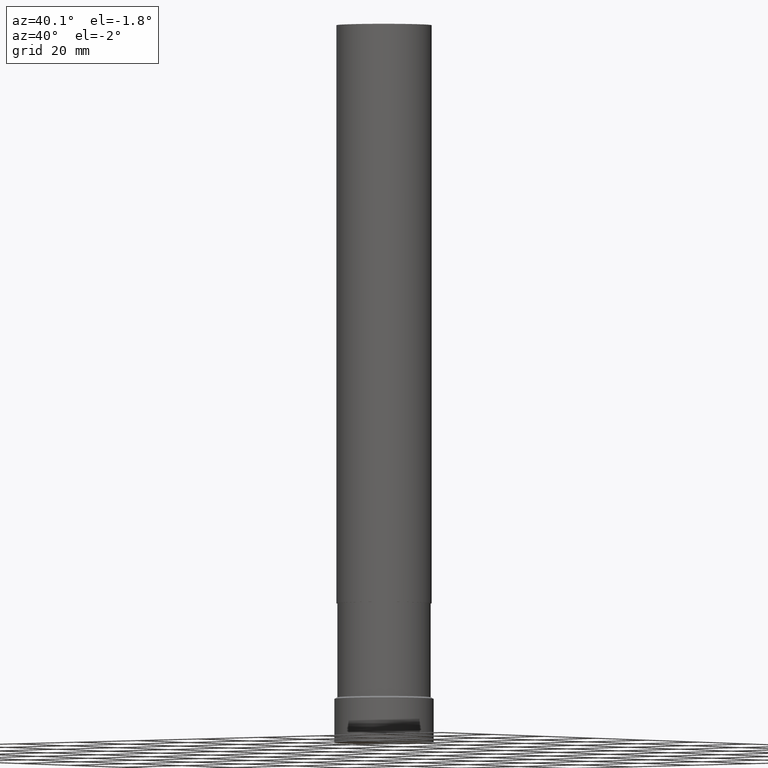
[diagram: clean part render]
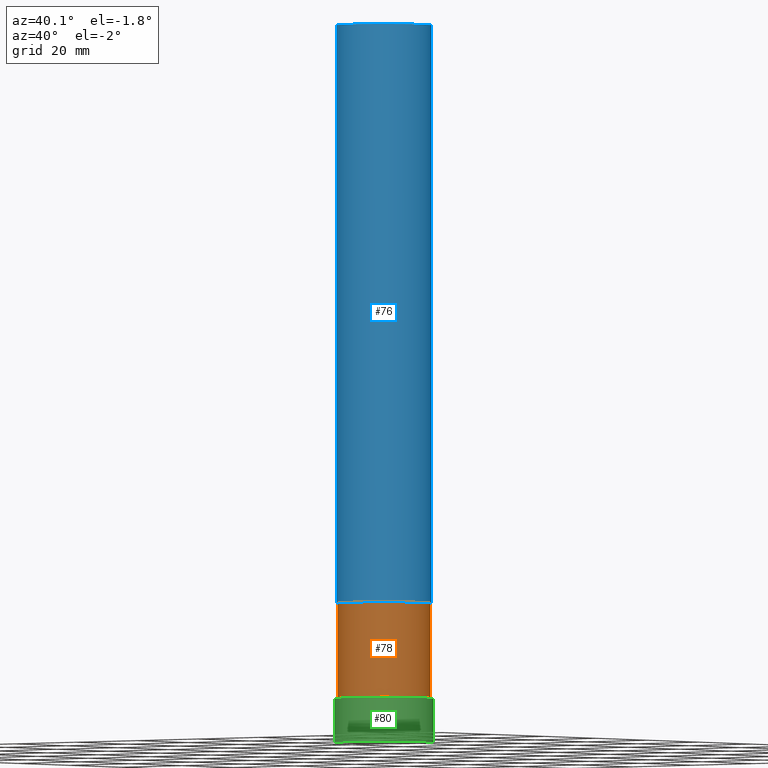
[diagram: same view with three faces highlighted in distinct colors, each labeled with its STEP entity id]
A machine part, auxiliary view with three faces highlighted in distinct colors.
Their STEP definitions:

[orange] entity #78 — the highlighted cylindrical surface (bore or boss wall) has radius 11.75 mm, axis along (-0, 0, 1).
#78=ADVANCED_FACE('',(#91,#92),#93,.T.);
#91=FACE_BOUND('',#110,.T.);
#92=FACE_BOUND('',#111,.T.);
#93=CYLINDRICAL_SURFACE('',#112,11.75);
#110=EDGE_LOOP('',(#135));
#111=EDGE_LOOP('',(#136));
#112=AXIS2_PLACEMENT_3D('',#137,#138,#139);
#135=ORIENTED_EDGE('',*,*,#157,.F.);
#136=ORIENTED_EDGE('',*,*,#156,.T.);
#137=CARTESIAN_POINT('',(-1.4202882675018E-015,2.43180438803728E-014,23.195067647107));
#138=DIRECTION('',(-6.12323399573677E-017,1.04841444096439E-015,1.0));
#139=DIRECTION('',(5.93697167345758E-032,1.0,-1.04841444096439E-015));
#156=EDGE_CURVE('',#164,#164,#165,.T.);
#157=EDGE_CURVE('',#166,#166,#167,.T.);
#164=VERTEX_POINT('',#176);
#165=CIRCLE('',#177,11.75);
#166=VERTEX_POINT('',#178);
#167=CIRCLE('',#179,11.7500000000001);
#176=CARTESIAN_POINT('',(-2.14313189850844E-015,11.75,35.0000000000093));
#177=AXIS2_PLACEMENT_3D('',#190,#191,#192);
#178=CARTESIAN_POINT('',(-6.97444636495159E-016,11.7500000000001,11.3901352942048));
#179=AXIS2_PLACEMENT_3D('',#193,#194,#195);
#190=CARTESIAN_POINT('',(-2.14313189850844E-015,3.66945054337633E-014,35.0000000000093));
#191=DIRECTION('',(6.12323399573677E-017,-1.04841444096439E-015,-1.0));
#192=DIRECTION('',(5.93697167345758E-032,1.0,-1.04841444096439E-015));
#193=CARTESIAN_POINT('',(-6.97444636495161E-016,1.19415823269824E-014,11.3901352942048));
#194=DIRECTION('',(6.12323399573677E-017,-1.04841444096439E-015,-1.0));
#195=DIRECTION('',(5.93697167345758E-032,1.0,-1.04841444096439E-015));

[blue] entity #76 — the highlighted cylindrical surface (bore or boss wall) has radius 12 mm, axis along (-0, 0, 1).
#76=ADVANCED_FACE('',(#85,#86),#87,.T.);
#85=FACE_BOUND('',#104,.T.);
#86=FACE_BOUND('',#105,.T.);
#87=CYLINDRICAL_SURFACE('',#106,12.0000000000003);
#104=EDGE_LOOP('',(#125));
#105=EDGE_LOOP('',(#126));
#106=AXIS2_PLACEMENT_3D('',#127,#128,#129);
#125=ORIENTED_EDGE('',*,*,#155,.F.);
#126=ORIENTED_EDGE('',*,*,#154,.T.);
#127=CARTESIAN_POINT('',(-6.58247654541723E-015,1.12704552403675E-013,107.500000000003));
#128=DIRECTION('',(-6.12323399573677E-017,1.04841444096439E-015,1.0));
#129=DIRECTION('',(5.93697167345758E-032,1.0,-1.04841444096439E-015));
#154=EDGE_CURVE('',#160,#160,#161,.T.);
#155=EDGE_CURVE('',#162,#162,#163,.T.);
#160=VERTEX_POINT('',#172);
#161=CIRCLE('',#173,12.0000000000004);
#162=VERTEX_POINT('',#174);
#163=CIRCLE('',#175,12.0000000000001);
#172=CARTESIAN_POINT('',(-1.10218211923264E-014,12.0000000000006,180.000000000003));
#173=AXIS2_PLACEMENT_3D('',#184,#185,#186);
#174=CARTESIAN_POINT('',(-2.14313189850807E-015,12.0000000000001,35.0000000000033));
#175=AXIS2_PLACEMENT_3D('',#187,#188,#189);
#184=CARTESIAN_POINT('',(-1.10218211923264E-014,1.88714599373593E-013,180.000000000003));
#185=DIRECTION('',(6.12323399573677E-017,-1.04841444096439E-015,-1.0));
#186=DIRECTION('',(5.93697167345758E-032,1.0,-1.04841444096439E-015));
#187=CARTESIAN_POINT('',(-2.14313189850807E-015,3.6694505433757E-014,35.0000000000033));
#188=DIRECTION('',(6.12323399573677E-017,-1.04841444096439E-015,-1.0));
#189=DIRECTION('',(5.93697167345758E-032,1.0,-1.04841444096439E-015));

[green] entity #80 — the highlighted cylindrical surface (bore or boss wall) has radius 12.5 mm, axis along (-0, 0, 1).
#80=ADVANCED_FACE('',(#97,#98),#99,.T.);
#97=FACE_BOUND('',#116,.T.);
#98=FACE_BOUND('',#117,.T.);
#99=CYLINDRICAL_SURFACE('',#118,12.5000000000002);
#116=EDGE_LOOP('',(#145));
#117=EDGE_LOOP('',(#146));
#118=AXIS2_PLACEMENT_3D('',#147,#148,#149);
#145=ORIENTED_EDGE('',*,*,#159,.F.);
#146=ORIENTED_EDGE('',*,*,#158,.T.);
#147=CARTESIAN_POINT('',(-3.36473413836006E-016,5.76106655913958E-015,5.49502785734256));
#148=DIRECTION('',(-6.12323399573677E-017,1.04841444096439E-015,1.0));
#149=DIRECTION('',(5.93697167345758E-032,1.0,-1.04841444096439E-015));
#158=EDGE_CURVE('',#168,#168,#169,.T.);
#159=EDGE_CURVE('',#170,#170,#171,.T.);
#168=VERTEX_POINT('',#180);
#169=CIRCLE('',#181,12.5);
#170=VERTEX_POINT('',#182);
#171=CIRCLE('',#183,12.5000000000004);
#180=CARTESIAN_POINT('',(-6.72946827672014E-016,12.5,10.9900557146852));
#181=AXIS2_PLACEMENT_3D('',#196,#197,#198);
#182=CARTESIAN_POINT('',(1.57772181044202E-030,12.5000000000004,-2.8421709430404E-014));
#183=AXIS2_PLACEMENT_3D('',#199,#200,#201);
#196=CARTESIAN_POINT('',(-6.72946827672014E-016,1.15221331182792E-014,10.9900557146852));
#197=DIRECTION('',(6.12323399573677E-017,-1.04841444096439E-015,-1.0));
#198=DIRECTION('',(5.93697167345758E-032,1.0,-1.04841444096439E-015));
#199=CARTESIAN_POINT('',(0.0,0.0,0.0));
#200=DIRECTION('',(6.12323399573677E-017,-1.04841444096439E-015,-1.0));
#201=DIRECTION('',(5.93697167345758E-032,1.0,-1.04841444096439E-015));